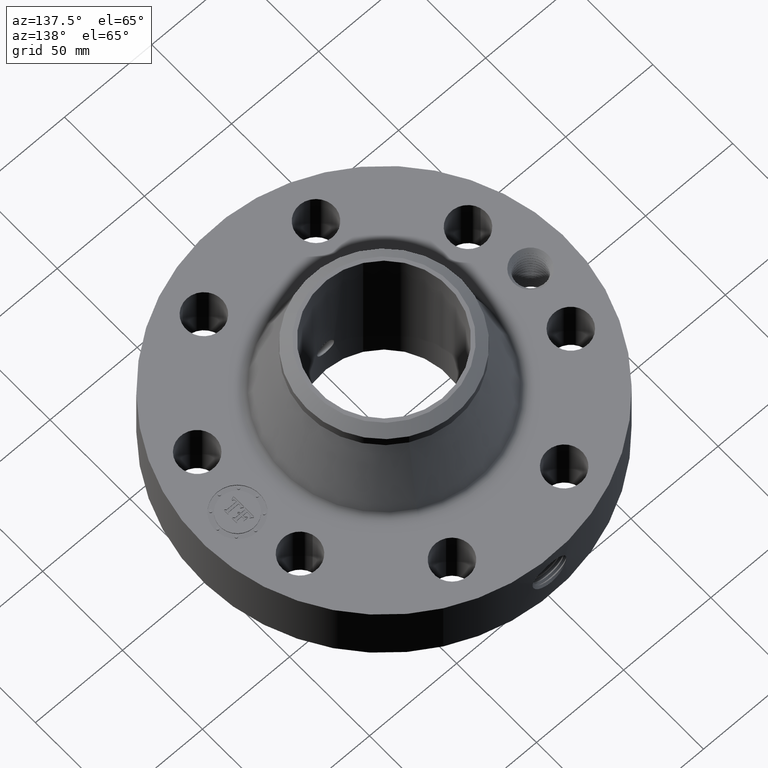
[diagram: clean part render]
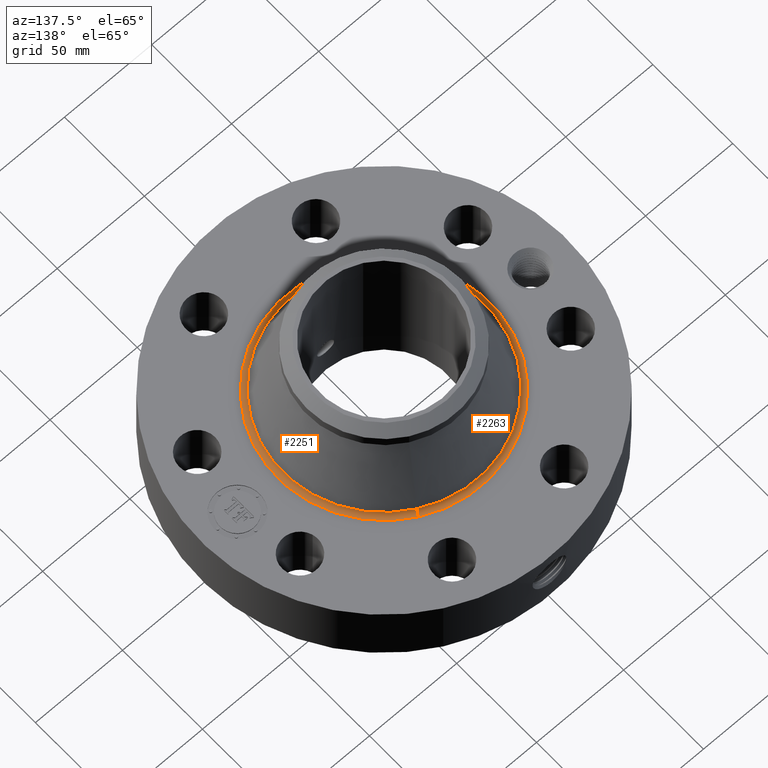
[diagram: same view with one multi-face feature highlighted, each face labeled with its STEP entity id]
A machine part, auxiliary view. The highlighted faces form ONE feature: a constant-radius fillet chain: 2 tangent blend faces with common blend radius 3.048 mm. The faces share edges in the B-rep.
Their STEP definitions:
[1] entity #2251 (Torus):
#568=AXIS2_PLACEMENT_3D('Circle Axis2P3D',#566,#567,$) ;
#2224=AXIS2_PLACEMENT_3D('Torus Axis2P3D',#2221,#2222,#2223) ;
#2228=AXIS2_PLACEMENT_3D('Circle Axis2P3D',#2226,#2227,$) ;
#2235=AXIS2_PLACEMENT_3D('Circle Axis2P3D',#2233,#2234,$) ;
#2242=AXIS2_PLACEMENT_3D('Circle Axis2P3D',#2240,#2241,$) ;
#561=CARTESIAN_POINT('Vertex',(-1.1482394859,-2.10183828052,1.56000000001)) ;
#563=CARTESIAN_POINT('Vertex',(1.1482394859,2.10183828052,1.56000000001)) ;
#566=CARTESIAN_POINT('Axis2P3D Location',(0.,0.,1.56000000001)) ;
#2221=CARTESIAN_POINT('Axis2P3D Location',(0.,0.,1.68000000001)) ;
#2226=CARTESIAN_POINT('Axis2P3D Location',(1.1482394859,2.10183828052,1.68000000001)) ;
#2230=CARTESIAN_POINT('Vertex',(1.09396064071,2.00248152086,1.64022511755)) ;
#2233=CARTESIAN_POINT('Axis2P3D Location',(0.,0.,1.64022511755)) ;
#2237=CARTESIAN_POINT('Vertex',(-1.09396064071,-2.00248152086,1.64022511755)) ;
#2240=CARTESIAN_POINT('Axis2P3D Location',(-1.1482394859,-2.10183828052,1.68000000001)) ;
#567=DIRECTION('Axis2P3D Direction',(0.,0.,-0.0393700787402)) ;
#2222=DIRECTION('Axis2P3D Direction',(0.,0.,-0.0393700787402)) ;
#2223=DIRECTION('Axis2P3D XDirection',(-0.0188750212049,-0.0345504945626,0.)) ;
#2227=DIRECTION('Axis2P3D Direction',(-0.0345504945626,0.0188750212049,0.)) ;
#2234=DIRECTION('Axis2P3D Direction',(0.,0.,-0.0393700787402)) ;
#2241=DIRECTION('Axis2P3D Direction',(0.0345504945626,-0.0188750212049,0.)) ;
#2246=ORIENTED_EDGE('',*,*,#570,.F.) ;
#2247=ORIENTED_EDGE('',*,*,#2232,.T.) ;
#2248=ORIENTED_EDGE('',*,*,#2239,.T.) ;
#2249=ORIENTED_EDGE('',*,*,#2244,.F.) ;
#2251=ADVANCED_FACE('PartBody',(#2250),#2225,.F.) ;
#569=CIRCLE('generated circle',#568,2.39503195688) ;
#2229=CIRCLE('generated circle',#2228,0.12) ;
#2236=CIRCLE('generated circle',#2235,2.2818155326) ;
#2243=CIRCLE('generated circle',#2242,0.12) ;
#2225=TOROIDAL_SURFACE('homeo Torus',#2224,2.39503195688,0.12) ;
#570=EDGE_CURVE('',#564,#562,#569,.T.) ;
#2232=EDGE_CURVE('',#564,#2231,#2229,.T.) ;
#2239=EDGE_CURVE('',#2231,#2238,#2236,.T.) ;
#2244=EDGE_CURVE('',#562,#2238,#2243,.T.) ;
#2245=EDGE_LOOP('',(#2246,#2247,#2248,#2249)) ;
#2250=FACE_OUTER_BOUND('',#2245,.T.) ;
#562=VERTEX_POINT('',#561) ;
#564=VERTEX_POINT('',#563) ;
#2231=VERTEX_POINT('',#2230) ;
#2238=VERTEX_POINT('',#2237) ;
[2] entity #2263 (Torus):
#559=AXIS2_PLACEMENT_3D('Circle Axis2P3D',#557,#558,$) ;
#2224=AXIS2_PLACEMENT_3D('Torus Axis2P3D',#2221,#2222,#2223) ;
#2228=AXIS2_PLACEMENT_3D('Circle Axis2P3D',#2226,#2227,$) ;
#2242=AXIS2_PLACEMENT_3D('Circle Axis2P3D',#2240,#2241,$) ;
#2254=AXIS2_PLACEMENT_3D('Circle Axis2P3D',#2252,#2253,$) ;
#557=CARTESIAN_POINT('Axis2P3D Location',(0.,0.,1.56000000001)) ;
#561=CARTESIAN_POINT('Vertex',(-1.1482394859,-2.10183828052,1.56000000001)) ;
#563=CARTESIAN_POINT('Vertex',(1.1482394859,2.10183828052,1.56000000001)) ;
#2221=CARTESIAN_POINT('Axis2P3D Location',(0.,0.,1.68000000001)) ;
#2226=CARTESIAN_POINT('Axis2P3D Location',(1.1482394859,2.10183828052,1.68000000001)) ;
#2230=CARTESIAN_POINT('Vertex',(1.09396064071,2.00248152086,1.64022511755)) ;
#2237=CARTESIAN_POINT('Vertex',(-1.09396064071,-2.00248152086,1.64022511755)) ;
#2240=CARTESIAN_POINT('Axis2P3D Location',(-1.1482394859,-2.10183828052,1.68000000001)) ;
#2252=CARTESIAN_POINT('Axis2P3D Location',(0.,0.,1.64022511755)) ;
#558=DIRECTION('Axis2P3D Direction',(0.,0.,-0.0393700787402)) ;
#2222=DIRECTION('Axis2P3D Direction',(0.,0.,-0.0393700787402)) ;
#2223=DIRECTION('Axis2P3D XDirection',(-0.0188750212049,-0.0345504945626,0.)) ;
#2227=DIRECTION('Axis2P3D Direction',(-0.0345504945626,0.0188750212049,0.)) ;
#2241=DIRECTION('Axis2P3D Direction',(0.0345504945626,-0.0188750212049,0.)) ;
#2253=DIRECTION('Axis2P3D Direction',(0.,0.,-0.0393700787402)) ;
#2258=ORIENTED_EDGE('',*,*,#565,.F.) ;
#2259=ORIENTED_EDGE('',*,*,#2244,.T.) ;
#2260=ORIENTED_EDGE('',*,*,#2256,.T.) ;
#2261=ORIENTED_EDGE('',*,*,#2232,.F.) ;
#2263=ADVANCED_FACE('PartBody',(#2262),#2225,.F.) ;
#560=CIRCLE('generated circle',#559,2.39503195688) ;
#2229=CIRCLE('generated circle',#2228,0.12) ;
#2243=CIRCLE('generated circle',#2242,0.12) ;
#2255=CIRCLE('generated circle',#2254,2.2818155326) ;
#2225=TOROIDAL_SURFACE('homeo Torus',#2224,2.39503195688,0.12) ;
#565=EDGE_CURVE('',#562,#564,#560,.T.) ;
#2232=EDGE_CURVE('',#564,#2231,#2229,.T.) ;
#2244=EDGE_CURVE('',#562,#2238,#2243,.T.) ;
#2256=EDGE_CURVE('',#2238,#2231,#2255,.T.) ;
#2257=EDGE_LOOP('',(#2258,#2259,#2260,#2261)) ;
#2262=FACE_OUTER_BOUND('',#2257,.T.) ;
#562=VERTEX_POINT('',#561) ;
#564=VERTEX_POINT('',#563) ;
#2231=VERTEX_POINT('',#2230) ;
#2238=VERTEX_POINT('',#2237) ;